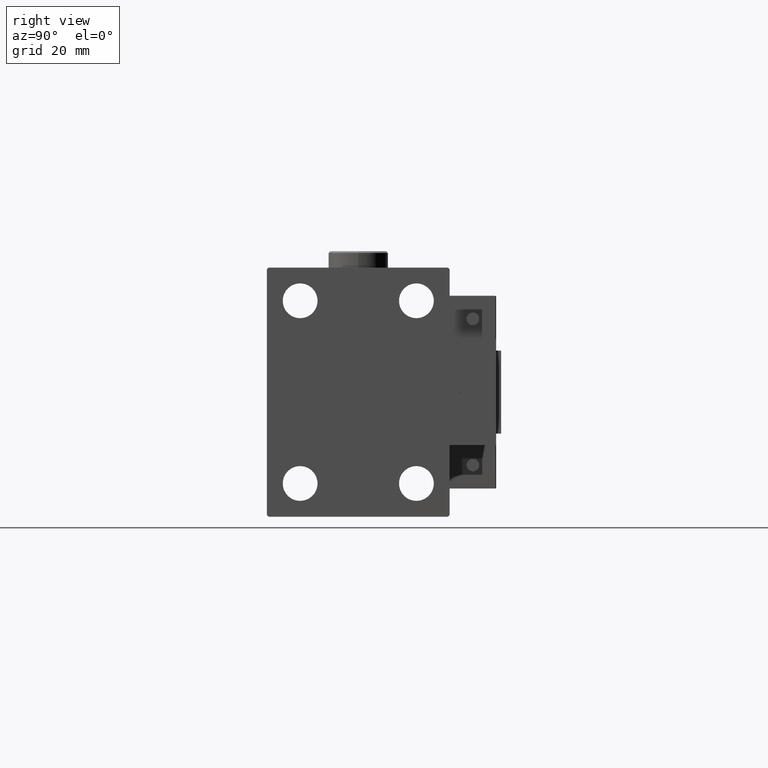
[diagram: clean part render]
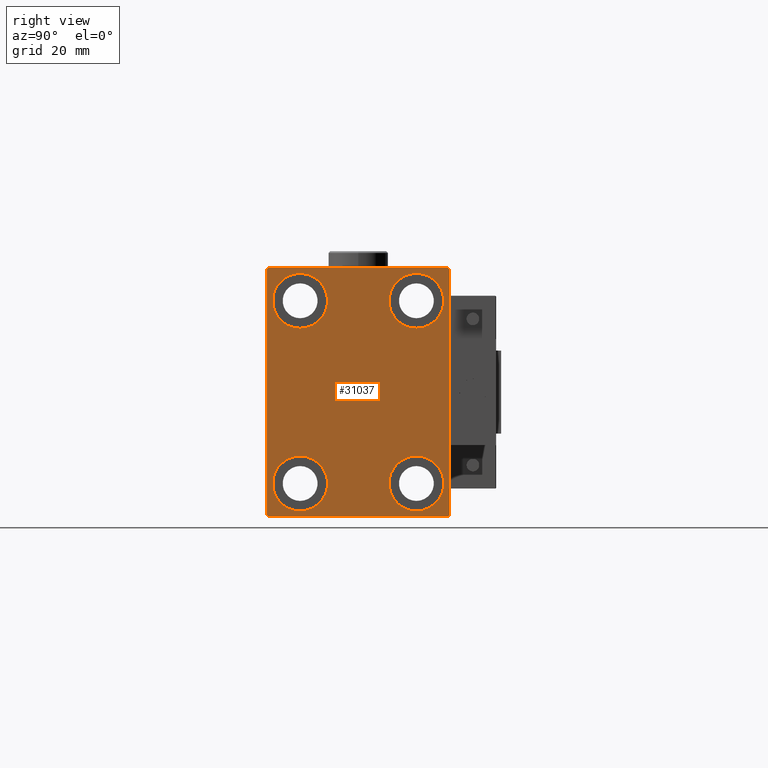
[diagram: same view with one face highlighted and labeled with its STEP entity id]
A machine part, right view. The second image highlights one B-rep face of the part: STEP entity #31037.
In plain terms, the highlighted planar face has unit normal (1, 0, 0).
Its self-contained STEP definition (entity closure, byte-faithful):
#59 = EDGE_CURVE ( 'NONE', #38249, #28799, #37582, .T. ) ;
#141 = EDGE_CURVE ( 'NONE', #28799, #8062, #14906, .T. ) ;
#167 = EDGE_LOOP ( 'NONE', ( #6317, #30346 ) ) ;
#387 = EDGE_CURVE ( 'NONE', #17522, #21970, #1040, .T. ) ;
#581 = CARTESIAN_POINT ( 'NONE',  ( 115.0000000000000000, -17.50000000000000355, -27.50000000000000355 ) ) ;
#802 = EDGE_LOOP ( 'NONE', ( #23540, #1328, #14550, #28828, #14529, #42247, #40905, #46669 ) ) ;
#986 = EDGE_CURVE ( 'NONE', #8338, #25486, #47508, .T. ) ;
#1040 = LINE ( 'NONE', #5216, #13324 ) ;
#1328 = ORIENTED_EDGE ( 'NONE', *, *, #31245, .T. ) ;
#1514 = LINE ( 'NONE', #36499, #20660 ) ;
#1850 = DIRECTION ( 'NONE',  ( 0.000000000000000000, 1.000000000000000000, 0.000000000000000000 ) ) ;
#1945 = CARTESIAN_POINT ( 'NONE',  ( 115.0000000000000000, 17.50000000000000355, 35.74999999999999289 ) ) ;
#2590 = VERTEX_POINT ( 'NONE', #1945 ) ;
#2654 = VERTEX_POINT ( 'NONE', #43132 ) ;
#2822 = DIRECTION ( 'NONE',  ( 0.000000000000000000, -0.7071067811865378028, -0.7071067811865573427 ) ) ;
#3096 = DIRECTION ( 'NONE',  ( 0.000000000000000000, 0.000000000000000000, 1.000000000000000000 ) ) ;
#3876 = CARTESIAN_POINT ( 'NONE',  ( 115.0000000000000000, 17.50000000000000355, 27.49999999999999645 ) ) ;
#4480 = DIRECTION ( 'NONE',  ( -1.000000000000000000, -0.000000000000000000, -0.000000000000000000 ) ) ;
#5216 = CARTESIAN_POINT ( 'NONE',  ( 115.0000000000000000, -27.50000000000000355, 37.50000000000000000 ) ) ;
#5217 = DIRECTION ( 'NONE',  ( 1.000000000000000000, 0.000000000000000000, 0.000000000000000000 ) ) ;
#5225 = AXIS2_PLACEMENT_3D ( 'NONE', #20453, #41004, #5282 ) ;
#5282 = DIRECTION ( 'NONE',  ( 0.000000000000000000, 0.000000000000000000, 1.000000000000000000 ) ) ;
#5324 = DIRECTION ( 'NONE',  ( 0.000000000000000000, 0.000000000000000000, 1.000000000000000000 ) ) ;
#5527 = LINE ( 'NONE', #21711, #38850 ) ;
#5772 = EDGE_CURVE ( 'NONE', #2590, #49431, #6687, .T. ) ;
#5948 = CARTESIAN_POINT ( 'NONE',  ( 115.0000000000000000, 26.99999999999999645, 37.50000000000000711 ) ) ;
#6017 = CARTESIAN_POINT ( 'NONE',  ( 115.0000000000000000, 17.50000000000000355, 27.49999999999999645 ) ) ;
#6317 = ORIENTED_EDGE ( 'NONE', *, *, #48497, .T. ) ;
#6423 = VERTEX_POINT ( 'NONE', #33434 ) ;
#6687 = CIRCLE ( 'NONE', #29171, 8.249999999999992895 ) ;
#7255 = CARTESIAN_POINT ( 'NONE',  ( 115.0000000000000000, -32.25000000000038369, 32.24999999999949551 ) ) ;
#8062 = VERTEX_POINT ( 'NONE', #45811 ) ;
#8338 = VERTEX_POINT ( 'NONE', #13653 ) ;
#9498 = DIRECTION ( 'NONE',  ( 0.000000000000000000, 0.000000000000000000, 1.000000000000000000 ) ) ;
#10091 = AXIS2_PLACEMENT_3D ( 'NONE', #12799, #5217, #32352 ) ;
#10249 = DIRECTION ( 'NONE',  ( -1.000000000000000000, -0.000000000000000000, -0.000000000000000000 ) ) ;
#10352 = VERTEX_POINT ( 'NONE', #49617 ) ;
#11167 = LINE ( 'NONE', #7255, #23440 ) ;
#11821 = CARTESIAN_POINT ( 'NONE',  ( 115.0000000000000000, 32.24999999999981526, 32.25000000000025580 ) ) ;
#12653 = CIRCLE ( 'NONE', #40106, 8.250000000000000000 ) ;
#12799 = CARTESIAN_POINT ( 'NONE',  ( 115.0000000000000000, 0.000000000000000000, 0.000000000000000000 ) ) ;
#13104 = DIRECTION ( 'NONE',  ( -1.000000000000000000, -0.000000000000000000, -0.000000000000000000 ) ) ;
#13324 = VECTOR ( 'NONE', #25531, 1000.000000000000000 ) ;
#13528 = DIRECTION ( 'NONE',  ( 0.000000000000000000, -1.000000000000000000, -1.261617073437677999E-16 ) ) ;
#13653 = CARTESIAN_POINT ( 'NONE',  ( 115.0000000000000000, 27.49999999999999645, 37.00000000000001421 ) ) ;
#13674 = DIRECTION ( 'NONE',  ( -1.000000000000000000, -0.000000000000000000, -0.000000000000000000 ) ) ;
#13817 = AXIS2_PLACEMENT_3D ( 'NONE', #6017, #21936, #22453 ) ;
#13939 = CARTESIAN_POINT ( 'NONE',  ( 115.0000000000000000, -17.50000000000000355, -27.50000000000000355 ) ) ;
#14127 = DIRECTION ( 'NONE',  ( -0.000000000000000000, 0.7071067811865378028, 0.7071067811865573427 ) ) ;
#14529 = ORIENTED_EDGE ( 'NONE', *, *, #59, .T. ) ;
#14550 = ORIENTED_EDGE ( 'NONE', *, *, #387, .T. ) ;
#14906 = LINE ( 'NONE', #26371, #44931 ) ;
#15846 = VECTOR ( 'NONE', #51414, 1000.000000000000000 ) ;
#15894 = VERTEX_POINT ( 'NONE', #25644 ) ;
#15902 = EDGE_CURVE ( 'NONE', #10352, #32057, #29666, .T. ) ;
#16535 = DIRECTION ( 'NONE',  ( 0.000000000000000000, 0.000000000000000000, 1.000000000000000000 ) ) ;
#17522 = VERTEX_POINT ( 'NONE', #33531 ) ;
#17762 = ORIENTED_EDGE ( 'NONE', *, *, #47805, .T. ) ;
#18539 = CARTESIAN_POINT ( 'NONE',  ( 115.0000000000000000, -27.50000000000000355, -37.00000000000000000 ) ) ;
#18975 = ORIENTED_EDGE ( 'NONE', *, *, #36218, .T. ) ;
#19109 = VECTOR ( 'NONE', #1850, 1000.000000000000000 ) ;
#19808 = DIRECTION ( 'NONE',  ( -1.000000000000000000, -0.000000000000000000, -0.000000000000000000 ) ) ;
#20385 = PLANE ( 'NONE',  #10091 ) ;
#20453 = CARTESIAN_POINT ( 'NONE',  ( 115.0000000000000000, 17.49999999999999645, -27.50000000000000355 ) ) ;
#20660 = VECTOR ( 'NONE', #13528, 1000.000000000000000 ) ;
#20892 = FACE_BOUND ( 'NONE', #25094, .T. ) ;
#21285 = EDGE_LOOP ( 'NONE', ( #17762, #51062 ) ) ;
#21711 = CARTESIAN_POINT ( 'NONE',  ( 115.0000000000000000, -32.25000000000000000, -32.25000000000000000 ) ) ;
#21936 = DIRECTION ( 'NONE',  ( -1.000000000000000000, -0.000000000000000000, -0.000000000000000000 ) ) ;
#21970 = VERTEX_POINT ( 'NONE', #18539 ) ;
#22062 = EDGE_LOOP ( 'NONE', ( #43226, #42737 ) ) ;
#22197 = CIRCLE ( 'NONE', #47988, 8.250000000000000000 ) ;
#22341 = EDGE_CURVE ( 'NONE', #25486, #6423, #1514, .T. ) ;
#22453 = DIRECTION ( 'NONE',  ( 0.000000000000000000, 0.000000000000000000, 1.000000000000000000 ) ) ;
#23440 = VECTOR ( 'NONE', #2822, 1000.000000000000000 ) ;
#23540 = ORIENTED_EDGE ( 'NONE', *, *, #22341, .T. ) ;
#23982 = VERTEX_POINT ( 'NONE', #32437 ) ;
#24258 = EDGE_CURVE ( 'NONE', #8062, #8338, #51113, .T. ) ;
#24481 = EDGE_CURVE ( 'NONE', #33354, #2654, #44839, .T. ) ;
#24849 = DIRECTION ( 'NONE',  ( -0.000000000000000000, 0.7071067811865474617, -0.7071067811865474617 ) ) ;
#25071 = CARTESIAN_POINT ( 'NONE',  ( 115.0000000000000000, -17.49999999999999645, 27.49999999999999645 ) ) ;
#25094 = EDGE_LOOP ( 'NONE', ( #18975, #51171 ) ) ;
#25486 = VERTEX_POINT ( 'NONE', #5948 ) ;
#25531 = DIRECTION ( 'NONE',  ( 0.000000000000000000, 0.000000000000000000, -1.000000000000000000 ) ) ;
#25644 = CARTESIAN_POINT ( 'NONE',  ( 115.0000000000000000, -17.50000000000000355, -35.75000000000000711 ) ) ;
#26371 = CARTESIAN_POINT ( 'NONE',  ( 115.0000000000000000, 32.25000000000038369, -32.24999999999949551 ) ) ;
#28588 = CARTESIAN_POINT ( 'NONE',  ( 115.0000000000000000, 17.50000000000000355, 19.25000000000000000 ) ) ;
#28799 = VERTEX_POINT ( 'NONE', #37128 ) ;
#28828 = ORIENTED_EDGE ( 'NONE', *, *, #48812, .T. ) ;
#29171 = AXIS2_PLACEMENT_3D ( 'NONE', #3876, #19808, #35693 ) ;
#29423 = CARTESIAN_POINT ( 'NONE',  ( 115.0000000000000000, -17.49999999999999645, 35.74999999999999289 ) ) ;
#29666 = CIRCLE ( 'NONE', #41362, 8.250000000000000000 ) ;
#30346 = ORIENTED_EDGE ( 'NONE', *, *, #30690, .T. ) ;
#30690 = EDGE_CURVE ( 'NONE', #23982, #15894, #12653, .T. ) ;
#31037 = ADVANCED_FACE ( 'NONE', ( #20892, #32853, #48732, #48228, #40941 ), #20385, .T. ) ;
#31245 = EDGE_CURVE ( 'NONE', #6423, #17522, #11167, .T. ) ;
#31577 = CARTESIAN_POINT ( 'NONE',  ( 115.0000000000000000, 27.50000000000000355, -37.50000000000000000 ) ) ;
#32057 = VERTEX_POINT ( 'NONE', #40948 ) ;
#32352 = DIRECTION ( 'NONE',  ( 0.000000000000000000, 0.000000000000000000, -1.000000000000000000 ) ) ;
#32437 = CARTESIAN_POINT ( 'NONE',  ( 115.0000000000000000, -17.50000000000000355, -19.25000000000000355 ) ) ;
#32853 = FACE_BOUND ( 'NONE', #22062, .T. ) ;
#33354 = VERTEX_POINT ( 'NONE', #29423 ) ;
#33434 = CARTESIAN_POINT ( 'NONE',  ( 115.0000000000000000, -27.00000000000001776, 37.50000000000000000 ) ) ;
#33531 = CARTESIAN_POINT ( 'NONE',  ( 115.0000000000000000, -27.50000000000000355, 37.00000000000000000 ) ) ;
#35693 = DIRECTION ( 'NONE',  ( 0.000000000000000000, 0.000000000000000000, 1.000000000000000000 ) ) ;
#35988 = CARTESIAN_POINT ( 'NONE',  ( 115.0000000000000000, -27.00000000000000355, -37.50000000000000000 ) ) ;
#36055 = CIRCLE ( 'NONE', #5225, 8.250000000000000000 ) ;
#36218 = EDGE_CURVE ( 'NONE', #32057, #10352, #36055, .T. ) ;
#36424 = AXIS2_PLACEMENT_3D ( 'NONE', #25071, #4480, #48511 ) ;
#36499 = CARTESIAN_POINT ( 'NONE',  ( 115.0000000000000000, 27.49999999999999645, 37.50000000000000711 ) ) ;
#36536 = AXIS2_PLACEMENT_3D ( 'NONE', #41971, #50021, #3096 ) ;
#37128 = CARTESIAN_POINT ( 'NONE',  ( 115.0000000000000000, 27.00000000000001776, -37.50000000000000000 ) ) ;
#37150 = CIRCLE ( 'NONE', #13817, 8.249999999999992895 ) ;
#37582 = LINE ( 'NONE', #40735, #19109 ) ;
#38249 = VERTEX_POINT ( 'NONE', #35988 ) ;
#38850 = VECTOR ( 'NONE', #24849, 1000.000000000000114 ) ;
#40106 = AXIS2_PLACEMENT_3D ( 'NONE', #581, #13104, #16535 ) ;
#40735 = CARTESIAN_POINT ( 'NONE',  ( 115.0000000000000000, -27.50000000000000355, -37.50000000000000000 ) ) ;
#40905 = ORIENTED_EDGE ( 'NONE', *, *, #24258, .T. ) ;
#40941 = FACE_OUTER_BOUND ( 'NONE', #802, .T. ) ;
#40948 = CARTESIAN_POINT ( 'NONE',  ( 115.0000000000000000, 17.49999999999999645, -35.75000000000000711 ) ) ;
#41004 = DIRECTION ( 'NONE',  ( -1.000000000000000000, -0.000000000000000000, -0.000000000000000000 ) ) ;
#41362 = AXIS2_PLACEMENT_3D ( 'NONE', #49598, #10249, #5324 ) ;
#41971 = CARTESIAN_POINT ( 'NONE',  ( 115.0000000000000000, -17.49999999999999645, 27.49999999999999645 ) ) ;
#42247 = ORIENTED_EDGE ( 'NONE', *, *, #141, .T. ) ;
#42737 = ORIENTED_EDGE ( 'NONE', *, *, #24481, .T. ) ;
#43132 = CARTESIAN_POINT ( 'NONE',  ( 115.0000000000000000, -17.49999999999999645, 19.25000000000000000 ) ) ;
#43226 = ORIENTED_EDGE ( 'NONE', *, *, #46827, .T. ) ;
#43568 = DIRECTION ( 'NONE',  ( 0.000000000000000000, -9.251858538542970348E-17, 1.000000000000000000 ) ) ;
#44033 = VECTOR ( 'NONE', #43568, 1000.000000000000000 ) ;
#44839 = CIRCLE ( 'NONE', #36536, 8.249999999999992895 ) ;
#44931 = VECTOR ( 'NONE', #14127, 1000.000000000000000 ) ;
#45811 = CARTESIAN_POINT ( 'NONE',  ( 115.0000000000000000, 27.50000000000000355, -37.00000000000000000 ) ) ;
#46669 = ORIENTED_EDGE ( 'NONE', *, *, #986, .T. ) ;
#46827 = EDGE_CURVE ( 'NONE', #2654, #33354, #47203, .T. ) ;
#47203 = CIRCLE ( 'NONE', #36424, 8.249999999999992895 ) ;
#47508 = LINE ( 'NONE', #11821, #15846 ) ;
#47805 = EDGE_CURVE ( 'NONE', #49431, #2590, #37150, .T. ) ;
#47988 = AXIS2_PLACEMENT_3D ( 'NONE', #13939, #13674, #9498 ) ;
#48228 = FACE_BOUND ( 'NONE', #167, .T. ) ;
#48497 = EDGE_CURVE ( 'NONE', #15894, #23982, #22197, .T. ) ;
#48511 = DIRECTION ( 'NONE',  ( 0.000000000000000000, 0.000000000000000000, 1.000000000000000000 ) ) ;
#48732 = FACE_BOUND ( 'NONE', #21285, .T. ) ;
#48812 = EDGE_CURVE ( 'NONE', #21970, #38249, #5527, .T. ) ;
#49431 = VERTEX_POINT ( 'NONE', #28588 ) ;
#49598 = CARTESIAN_POINT ( 'NONE',  ( 115.0000000000000000, 17.49999999999999645, -27.50000000000000355 ) ) ;
#49617 = CARTESIAN_POINT ( 'NONE',  ( 115.0000000000000000, 17.49999999999999645, -19.25000000000000355 ) ) ;
#50021 = DIRECTION ( 'NONE',  ( -1.000000000000000000, -0.000000000000000000, -0.000000000000000000 ) ) ;
#51062 = ORIENTED_EDGE ( 'NONE', *, *, #5772, .T. ) ;
#51113 = LINE ( 'NONE', #31577, #44033 ) ;
#51171 = ORIENTED_EDGE ( 'NONE', *, *, #15902, .T. ) ;
#51414 = DIRECTION ( 'NONE',  ( -0.000000000000000000, -0.7071067811865524577, 0.7071067811865426878 ) ) ;